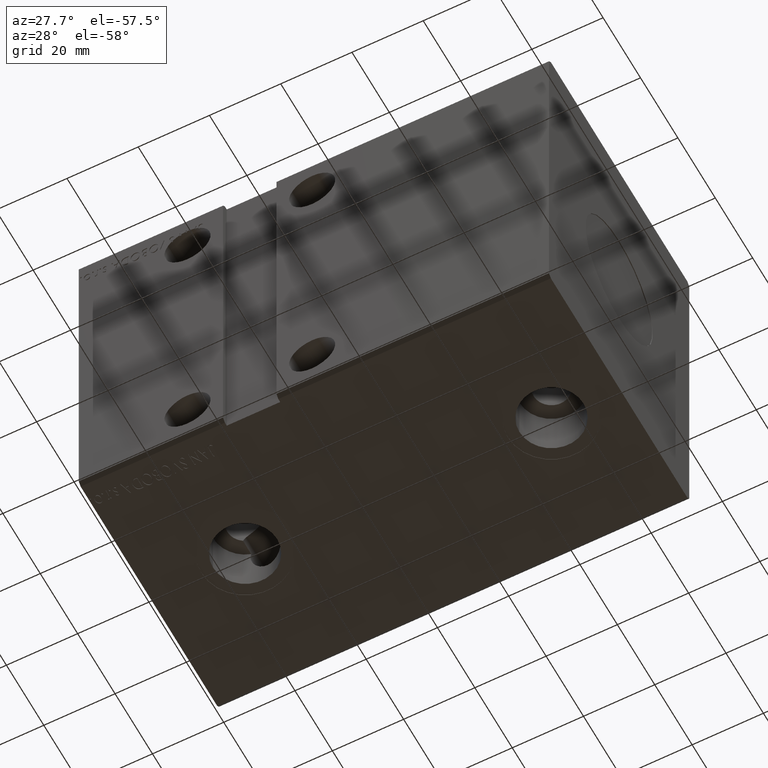
[diagram: clean part render]
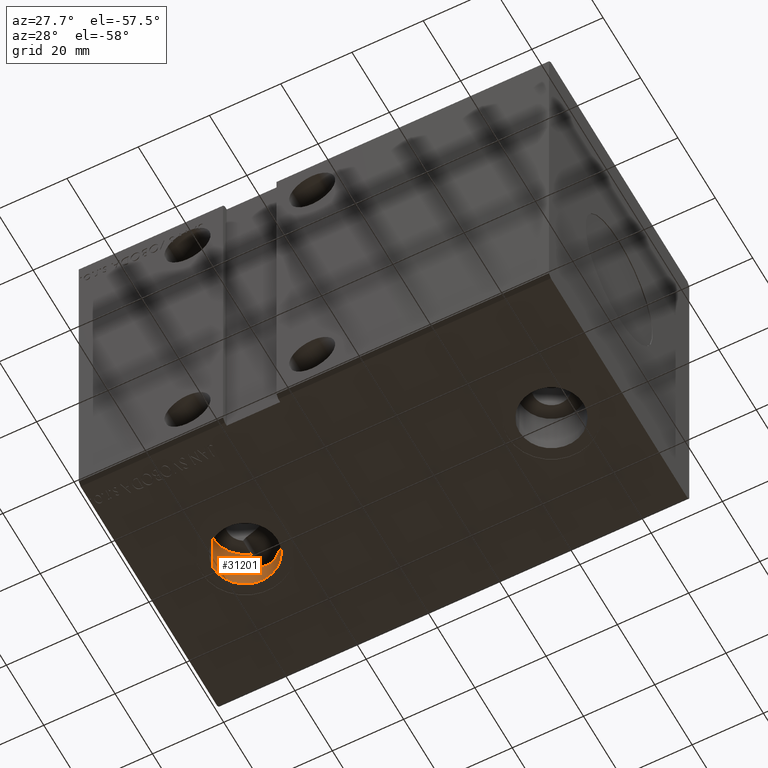
[diagram: same view with one face highlighted and labeled with its STEP entity id]
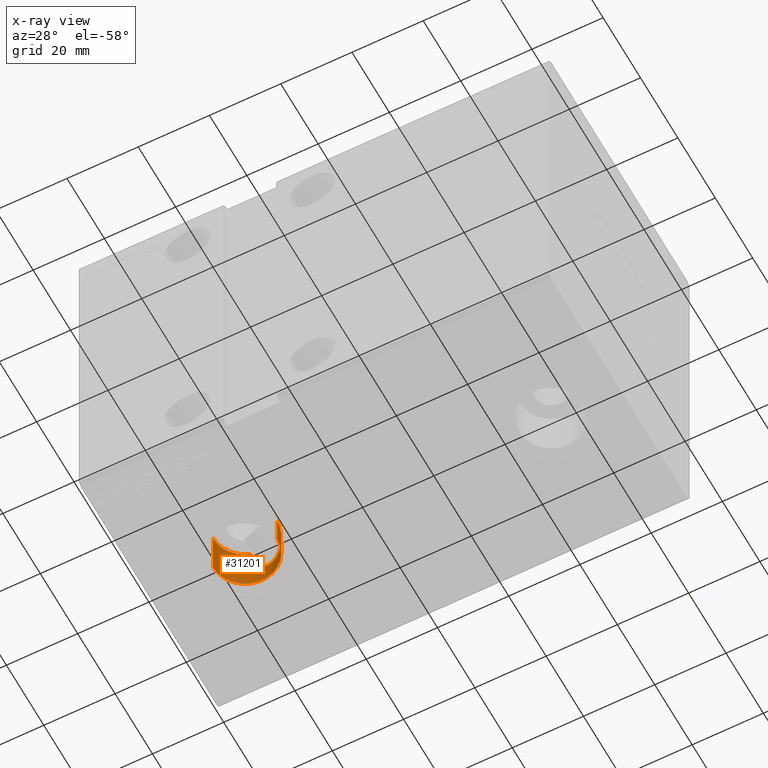
[diagram: x-ray of the same camera — body ghosted, the highlighted face saturated]
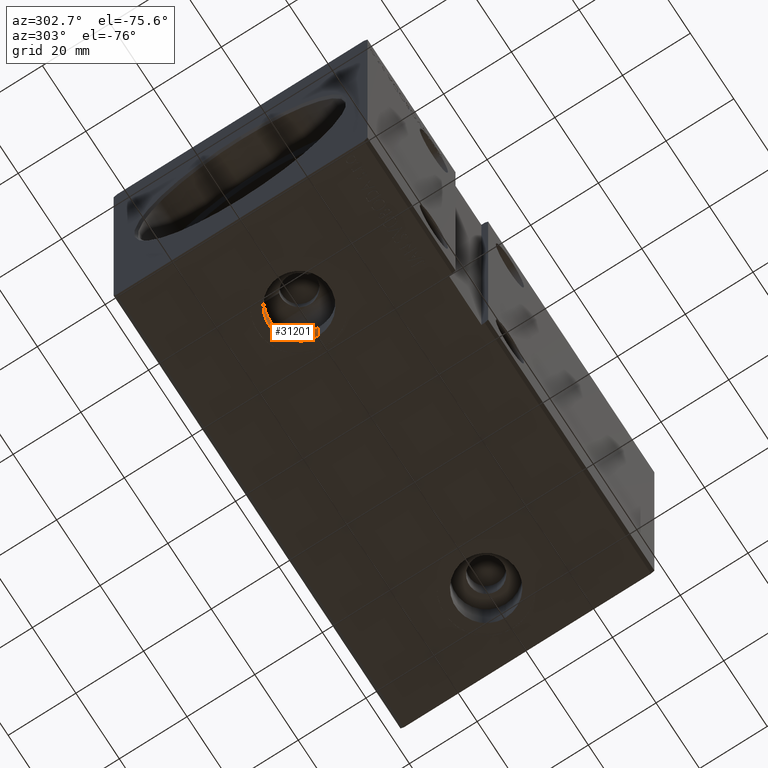
[diagram: same view with one face highlighted and labeled with its STEP entity id]
A machine part, auxiliary view. The second image highlights one B-rep face of the part: STEP entity #31201.
The next image is the same camera in x-ray: the body ghosted, the highlighted face saturated — about 0% of this face is hidden behind the body in this view.
A second angle (auxiliary view) of the same face is appended — the face is thin or edge-on in the first view.
In plain terms, the highlighted cylindrical surface (edge-blend (fillet) strip) has radius 9 mm, axis along (-0, -0, -1).
Its self-contained STEP definition (entity closure, byte-faithful):
#1074 = DIRECTION ( 'NONE',  ( 0.000000000000000000, 0.000000000000000000, -1.000000000000000000 ) ) ;
#1320 = DIRECTION ( 'NONE',  ( -1.000000000000000000, 0.000000000000000000, 0.000000000000000000 ) ) ;
#1450 = CARTESIAN_POINT ( 'NONE',  ( 31.53213788991320854, 7.778902176334434593, -44.42054814711987376 ) ) ;
#1529 = DIRECTION ( 'NONE',  ( -0.000000000000000000, -0.000000000000000000, -1.000000000000000000 ) ) ;
#1652 = CARTESIAN_POINT ( 'NONE',  ( 30.71251429079045892, 8.201856318506987265, -44.50000000000001421 ) ) ;
#2404 = DIRECTION ( 'NONE',  ( -0.000000000000000000, -0.000000000000000000, -1.000000000000000000 ) ) ;
#2536 = CARTESIAN_POINT ( 'NONE',  ( 36.00000000000000000, -5.033018704172544196E-15, -49.89999999999999858 ) ) ;
#3093 = CARTESIAN_POINT ( 'NONE',  ( 24.04321895051124258, 8.500466822859586102, -38.78972867892160536 ) ) ;
#3502 = CARTESIAN_POINT ( 'NONE',  ( 30.50000000000000000, 8.291561975888493308, -44.50000000000000711 ) ) ;
#3704 = CARTESIAN_POINT ( 'NONE',  ( 25.68184168985501969, 8.904690147843485448, -42.37009515617335609 ) ) ;
#3795 = CARTESIAN_POINT ( 'NONE',  ( 27.00000000000000000, -6.135200823405162107E-15, -49.89999999999999858 ) ) ;
#3902 = CARTESIAN_POINT ( 'NONE',  ( 26.80576716687173189, 9.000419915727412956, -43.35407746823445763 ) ) ;
#4309 = VECTOR ( 'NONE', #21242, 1000.000000000000000 ) ;
#4369 = CARTESIAN_POINT ( 'NONE',  ( 32.10654610623350891, 7.414448371750001598, -44.30119292685631649 ) ) ;
#4775 = CARTESIAN_POINT ( 'NONE',  ( 34.02983023524912198, 5.636033282318558157, -43.46784606828967412 ) ) ;
#4921 = VERTEX_POINT ( 'NONE', #2536 ) ;
#6018 = VERTEX_POINT ( 'NONE', #22684 ) ;
#6585 = DIRECTION ( 'NONE',  ( 0.000000000000000000, 0.000000000000000000, -1.000000000000000000 ) ) ;
#6615 = CARTESIAN_POINT ( 'NONE',  ( 28.59676247452729925, 8.871058228095431986, -44.23470823349908443 ) ) ;
#6827 = CARTESIAN_POINT ( 'NONE',  ( 24.17695309655280766, 8.545940747168174312, -39.52686686846315212 ) ) ;
#8306 = CARTESIAN_POINT ( 'NONE',  ( 34.75457593424106051, 4.587577681896062742, -42.92302558173772553 ) ) ;
#8835 = CARTESIAN_POINT ( 'NONE',  ( 18.00000000000000355, -6.135200823405162107E-15, -36.29999999999999716 ) ) ;
#9327 = CARTESIAN_POINT ( 'NONE',  ( 24.39443915077215053, 8.614963104548039041, -40.24380553885337974 ) ) ;
#9542 = CARTESIAN_POINT ( 'NONE',  ( 24.22624514345675095, 8.561908899059988087, -36.29999999999999716 ) ) ;
#10190 = VERTEX_POINT ( 'NONE', #8835 ) ;
#10812 = CARTESIAN_POINT ( 'NONE',  ( 35.72881505558267179, 2.235121160635094917, -41.86676955402597855 ) ) ;
#11013 = CARTESIAN_POINT ( 'NONE',  ( 32.64837442510379617, 7.010331547669232499, -44.13735216967574360 ) ) ;
#11740 = LINE ( 'NONE', #24354, #4309 ) ;
#12641 = CARTESIAN_POINT ( 'NONE',  ( 24.02039770171908017, 8.492484094784106929, -37.28174214376613804 ) ) ;
#12851 = CARTESIAN_POINT ( 'NONE',  ( 24.24009104361579148, 8.566763635365642671, -39.76807138928091945 ) ) ;
#13253 = CARTESIAN_POINT ( 'NONE',  ( 28.12965270406572316, 8.940239651527731368, -44.07300194059472886 ) ) ;
#14113 = CARTESIAN_POINT ( 'NONE',  ( 34.95952521180760186, 4.221735850368020238, -42.73586175502229878 ) ) ;
#14189 = FACE_OUTER_BOUND ( 'NONE', #20211, .T. ) ;
#14314 = CARTESIAN_POINT ( 'NONE',  ( 35.47354396815891420, 3.063826283744392143, -42.19002077157383468 ) ) ;
#15219 = ORIENTED_EDGE ( 'NONE', *, *, #40283, .T. ) ;
#15375 = VECTOR ( 'NONE', #2404, 1000.000000000000000 ) ;
#15725 = EDGE_CURVE ( 'NONE', #39679, #6018, #22067, .T. ) ;
#15736 = CARTESIAN_POINT ( 'NONE',  ( 24.79864112444914426, 8.729302014680506261, -41.16140163414763009 ) ) ;
#15934 = AXIS2_PLACEMENT_3D ( 'NONE', #32251, #1529, #1320 ) ;
#16141 = CARTESIAN_POINT ( 'NONE',  ( 24.00142411061776926, 8.485813633162582192, -38.28671295277384701 ) ) ;
#16278 = VERTEX_POINT ( 'NONE', #25990 ) ;
#16340 = CARTESIAN_POINT ( 'NONE',  ( 27.23137196056081777, 8.999541769932168478, -43.62401746983513107 ) ) ;
#16997 = CARTESIAN_POINT ( 'NONE',  ( 33.15448767461026591, 6.581626674365798735, -43.94425037204833018 ) ) ;
#17626 = CARTESIAN_POINT ( 'NONE',  ( 24.22624514345675095, 8.561908899059988087, -36.29999999999999716 ) ) ;
#18411 = ORIENTED_EDGE ( 'NONE', *, *, #24301, .T. ) ;
#18412 = EDGE_CURVE ( 'NONE', #10190, #23794, #22865, .T. ) ;
#18572 = EDGE_CURVE ( 'NONE', #6018, #4921, #11740, .T. ) ;
#18807 = DIRECTION ( 'NONE',  ( -1.000000000000000000, 0.000000000000000000, 0.000000000000000000 ) ) ;
#19445 = CARTESIAN_POINT ( 'NONE',  ( 24.48633998881850360, 8.642522027093990644, -40.47959303111822038 ) ) ;
#19545 = AXIS2_PLACEMENT_3D ( 'NONE', #40586, #6585, #18807 ) ;
#20211 = EDGE_LOOP ( 'NONE', ( #33165, #22366, #22372, #33484, #15219, #18411 ) ) ;
#20301 = CARTESIAN_POINT ( 'NONE',  ( 35.95650169660650874, 0.9129784185993737866, -41.53236931224900985 ) ) ;
#20502 = CARTESIAN_POINT ( 'NONE',  ( 36.00000000000000711, -1.170999381873793545E-14, -41.46410161513774995 ) ) ;
#20918 = CARTESIAN_POINT ( 'NONE',  ( 35.82784554392797816, 1.808725706777063680, -41.72545514620399842 ) ) ;
#20994 = EDGE_CURVE ( 'NONE', #23794, #39679, #40019, .T. ) ;
#21196 = CARTESIAN_POINT ( 'NONE',  ( 30.50000000000000000, 8.291561975888493308, -44.50000000000000711 ) ) ;
#21242 = DIRECTION ( 'NONE',  ( -0.000000000000000000, -0.000000000000000000, -1.000000000000000000 ) ) ;
#22067 = B_SPLINE_CURVE_WITH_KNOTS ( 'NONE', 3,
 ( #36686, #1652, #24245, #36891, #1450, #32769, #4369, #32969, #11013, #16997, #29654, #4775, #39186, #8306, #14113, #26739, #14314, #10812, #20918, #36074, #20301, #39384, #23629, #20502 ),
 .UNSPECIFIED., .F., .F.,
 ( 4, 2, 2, 2, 2, 2, 2, 2, 2, 2, 2, 4 ),
 ( 0.01199522993331532915, 0.01268270698594844981, 0.01337018403858158087, 0.01405766109121471194, 0.01474513814384784127, 0.01612009224911410341, 0.01749504635438036207, 0.01887000045964662420, 0.02024495456491288287, 0.02161990867017914847, 0.02230738572281227433, 0.02299486277544540713 ),
 .UNSPECIFIED. ) ;
#22366 = ORIENTED_EDGE ( 'NONE', *, *, #15725, .F. ) ;
#22372 = ORIENTED_EDGE ( 'NONE', *, *, #20994, .F. ) ;
#22557 = CARTESIAN_POINT ( 'NONE',  ( 23.99525603215391456, 8.483607291518918458, -38.03303007345218845 ) ) ;
#22684 = CARTESIAN_POINT ( 'NONE',  ( 36.00000000000000711, -1.170999381873793545E-14, -41.46410161513774995 ) ) ;
#22865 = CIRCLE ( 'NONE', #19545, 8.999999999999998224 ) ;
#23629 = CARTESIAN_POINT ( 'NONE',  ( 36.00000000000000000, 0.2280495443205085848, -41.46410161513777126 ) ) ;
#23794 = VERTEX_POINT ( 'NONE', #17626 ) ;
#24245 = CARTESIAN_POINT ( 'NONE',  ( 30.92384533628510113, 8.102871142991212139, -44.48942704189173014 ) ) ;
#24301 = EDGE_CURVE ( 'NONE', #16278, #4921, #27605, .T. ) ;
#24354 = CARTESIAN_POINT ( 'NONE',  ( 36.00000000000000000, -5.033018704172544196E-15, -36.29999999999999716 ) ) ;
#25055 = CARTESIAN_POINT ( 'NONE',  ( 24.09413459996006779, 8.519109767938104483, -36.78754656697819314 ) ) ;
#25462 = CARTESIAN_POINT ( 'NONE',  ( 26.60277056048006727, 8.993322494243809473, -43.20803825965478495 ) ) ;
#25866 = CARTESIAN_POINT ( 'NONE',  ( 29.56058370886963971, 8.642264492376385832, -44.45068964275817791 ) ) ;
#25990 = CARTESIAN_POINT ( 'NONE',  ( 18.00000000000000355, -6.135200823405162107E-15, -49.89999999999999858 ) ) ;
#26739 = CARTESIAN_POINT ( 'NONE',  ( 35.31873940376507903, 3.460588088740085055, -42.36984006984607731 ) ) ;
#27005 = AXIS2_PLACEMENT_3D ( 'NONE', #3795, #1074, #39007 ) ;
#27605 = CIRCLE ( 'NONE', #27005, 8.999999999999998224 ) ;
#28998 = CARTESIAN_POINT ( 'NONE',  ( 27.45408932449807082, 8.991373807712294663, -43.74759974905315829 ) ) ;
#29654 = CARTESIAN_POINT ( 'NONE',  ( 33.46294018429692585, 6.278040177477749673, -43.79465508727377454 ) ) ;
#29728 = CYLINDRICAL_SURFACE ( 'NONE', #15934, 8.999999999999998224 ) ;
#30807 = LINE ( 'NONE', #36600, #15375 ) ;
#31201 = ADVANCED_FACE ( 'NONE', ( #14189 ), #29728, .F. ) ;
#31905 = CARTESIAN_POINT ( 'NONE',  ( 26.21558327082854234, 8.967849859809707169, -42.89446964533284756 ) ) ;
#32110 = CARTESIAN_POINT ( 'NONE',  ( 25.51552035846641786, 8.878098369381774546, -42.17942662774032669 ) ) ;
#32251 = CARTESIAN_POINT ( 'NONE',  ( 27.00000000000000000, -6.135200823405162107E-15, -36.29999999999999716 ) ) ;
#32769 = CARTESIAN_POINT ( 'NONE',  ( 31.91876385380853520, 7.540381626458593445, -44.34632620185924168 ) ) ;
#32969 = CARTESIAN_POINT ( 'NONE',  ( 32.47147824020105844, 7.149390439711705625, -44.19671656938833593 ) ) ;
#33165 = ORIENTED_EDGE ( 'NONE', *, *, #18572, .F. ) ;
#33484 = ORIENTED_EDGE ( 'NONE', *, *, #18412, .F. ) ;
#35007 = CARTESIAN_POINT ( 'NONE',  ( 26.03139484814954585, 8.949460990445951225, -42.72693866815346553 ) ) ;
#35211 = CARTESIAN_POINT ( 'NONE',  ( 24.07851784904893222, 8.512792674254813008, -39.03769531280644856 ) ) ;
#36074 = CARTESIAN_POINT ( 'NONE',  ( 35.93011359611364952, 1.141778248153875630, -41.57317854016342551 ) ) ;
#36600 = CARTESIAN_POINT ( 'NONE',  ( 18.00000000000000355, -6.135200823405162107E-15, -36.29999999999999716 ) ) ;
#36686 = CARTESIAN_POINT ( 'NONE',  ( 30.50000000000000000, 8.291561975888493308, -44.50000000000000711 ) ) ;
#36891 = CARTESIAN_POINT ( 'NONE',  ( 31.33329645905483218, 7.891490656457047947, -44.44964535555660490 ) ) ;
#37913 = CARTESIAN_POINT ( 'NONE',  ( 25.05557618293238775, 8.792977758973833602, -41.58592055604377435 ) ) ;
#38518 = CARTESIAN_POINT ( 'NONE',  ( 30.03650129622813125, 8.487212140226516155, -44.50000000000000711 ) ) ;
#39007 = DIRECTION ( 'NONE',  ( -1.000000000000000000, 0.000000000000000000, 0.000000000000000000 ) ) ;
#39186 = CARTESIAN_POINT ( 'NONE',  ( 34.28957187370695436, 5.295418661956977857, -43.28930451691682180 ) ) ;
#39384 = CARTESIAN_POINT ( 'NONE',  ( 35.99134485050166177, 0.4562565215979601518, -41.47795564319861938 ) ) ;
#39679 = VERTEX_POINT ( 'NONE', #21196 ) ;
#40019 = B_SPLINE_CURVE_WITH_KNOTS ( 'NONE', 3,
 ( #9542, #25055, #12641, #22557, #16141, #3093, #35211, #6827, #12851, #9327, #19445, #15736, #37913, #32110, #3704, #35007, #31905, #25462, #3902, #16340, #28998, #13253, #6615, #25866, #38518, #3502 ),
 .UNSPECIFIED., .F., .F.,
 ( 4, 2, 2, 2, 2, 2, 2, 2, 2, 2, 2, 2, 4 ),
 ( 0.000000000000000000, 0.001499403741664381883, 0.002249105612496583341, 0.002998807483328785016, 0.003748509354160986257, 0.004498211224993187499, 0.005997614966657609063, 0.006747316837489819412, 0.007497018708322029761, 0.008246720579154240977, 0.008996422449986451325, 0.01049582619165089110, 0.01199522993331532915 ),
 .UNSPECIFIED. ) ;
#40283 = EDGE_CURVE ( 'NONE', #10190, #16278, #30807, .T. ) ;
#40586 = CARTESIAN_POINT ( 'NONE',  ( 27.00000000000000000, -6.135200823405162107E-15, -36.29999999999999716 ) ) ;